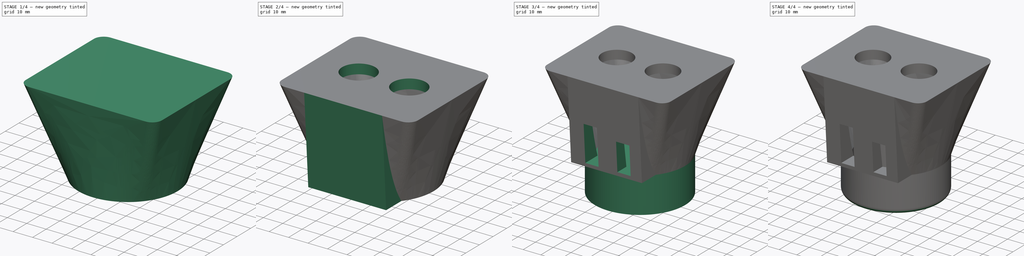
[diagram: build sequence overview — one tinted view per stage of 4, left to right]
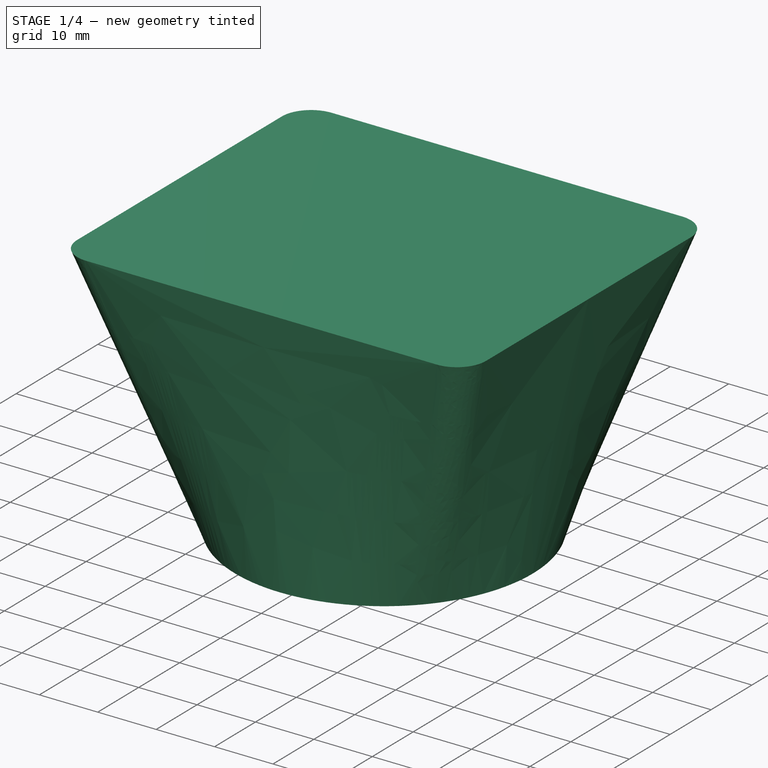
[diagram: stage 1 of 4 — iso view after this stage's code; geometry added in this stage tinted green]
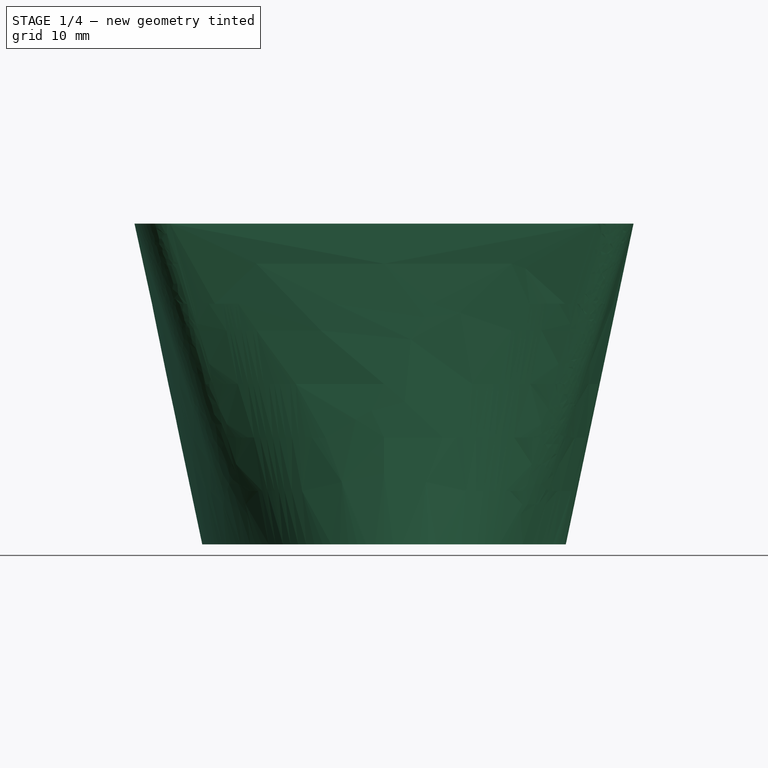
[diagram: stage 1 of 4 — front view after this stage's code; geometry added in this stage tinted green]
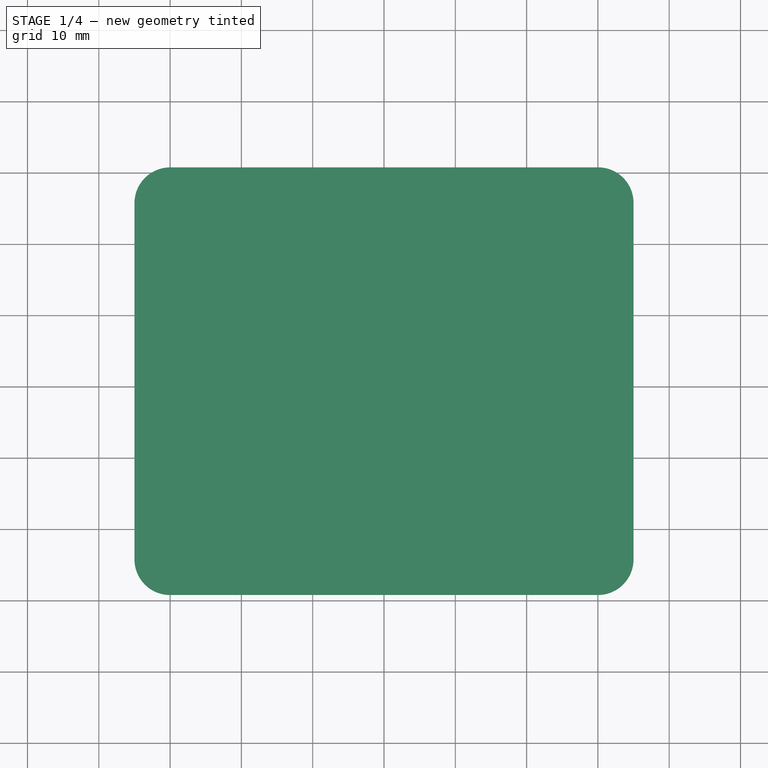
[diagram: stage 1 of 4 — top view after this stage's code; geometry added in this stage tinted green]
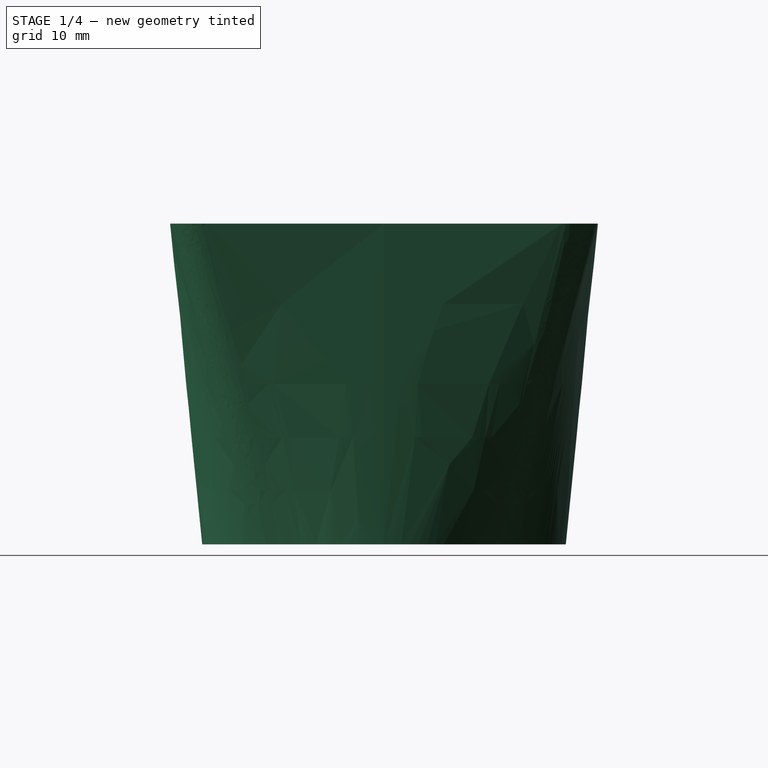
[diagram: stage 1 of 4 — right view after this stage's code; geometry added in this stage tinted green]
FCSTD DOCUMENT  (FreeCAD 0.16R6706 (Git))
Label: Capat senzor 05
License: All rights reserved
LicenseURL: http://en.wikipedia.org/wiki/All_rights_reserved
objects: Sketcher::SketchObject×8, Part::Cut×3, Part::Loft×3, Part::Cylinder×2, Part::MultiFuse×2, Part::Fillet×1, Part::Extrusion×1, PartDesign::Pocket×1
note: 22 computed .brp shape members not serialized (recipe doc carries the construction recipe); baked Part::Feature solids carry a one-line shape summary decoded from their .brp

FEATURE [Sketcher::SketchObject] Sketch
  Placement = pos=(0,0,20) rot=(0,0,1;0rad)
  sketch-geometry (1):
    g0: Circle CenterX=0 CenterY=0 CenterZ=0 NormalX=0 NormalY=0 NormalZ=1 Radius=20.5
  constraints (2):
    c: Coincident(g0,g-1)
    c: Radius(g0) = 20.5
FEATURE [Sketcher::SketchObject] Sketch002
  Placement = pos=(0,0,60) rot=(0,0,1;0rad)
  sketch-geometry (8):
    g0: LineSegment StartX=-25 StartY=25 StartZ=0 EndX=25 EndY=25 EndZ=0
    g1: LineSegment StartX=-30 StartY=20 StartZ=0 EndX=-30 EndY=-20 EndZ=0
    g2: LineSegment StartX=-25 StartY=-25 StartZ=0 EndX=25 EndY=-25 EndZ=0
    g3: LineSegment StartX=30 StartY=-20 StartZ=0 EndX=30 EndY=20 EndZ=0
    g4: ArcOfCircle CenterX=-24.9554 CenterY=19.9554 CenterZ=0 NormalX=0 NormalY=0 NormalZ=1 Radius=5.04478 StartAngle=1.57963 EndAngle=3.13275
    g5: ArcOfCircle CenterX=25.0182 CenterY=20.0182 CenterZ=0 NormalX=0 NormalY=0 NormalZ=1 Radius=4.9818 StartAngle=6.27953 EndAngle=7.85764
    g6: ArcOfCircle CenterX=25.0124 CenterY=-20.0124 CenterZ=0 NormalX=0 NormalY=0 NormalZ=1 Radius=4.98766 StartAngle=4.70991 EndAngle=6.28566
    g7: ArcOfCircle CenterX=-24.973 CenterY=-19.973 CenterZ=0 NormalX=0 NormalY=0 NormalZ=1 Radius=5.02711 StartAngle=3.14697 EndAngle=4.70701
  constraints (12):
    c: Horizontal(g0)
    c: Vertical(g1)
    c: Horizontal(g2)
    c: Vertical(g3)
    c: Coincident(g4,g0)
    c: Coincident(g4,g1)
    c: Coincident(g5,g3)
    c: Coincident(g5,g0)
    c: Coincident(g6,g2)
    c: Coincident(g6,g3)
    c: Coincident(g7,g2)
    c: Coincident(g7,g1)
FEATURE [Sketcher::SketchObject] Sketch003
  Placement = pos=(0,0,20) rot=(0,0,1;0rad)
  sketch-geometry (1):
    g0: Circle CenterX=0 CenterY=0 CenterZ=0 NormalX=0 NormalY=0 NormalZ=1 Radius=25.5
  constraints (2):
    c: Coincident(g0,g-1)
    c: Radius(g0) = 25.5
FEATURE [Part::Loft] Loft
  Closed = false
  Ruled = false
  Sections = -> [Sketch,Sketch002]
  Solid = true
FEATURE [Sketcher::SketchObject] Sketch001
  Placement = pos=(0,0,65) rot=(0,0,1;0rad)
  sketch-geometry (8):
    g0: LineSegment StartX=-35 StartY=-25 StartZ=0 EndX=-35 EndY=25 EndZ=0
    g1: LineSegment StartX=35 StartY=25 StartZ=0 EndX=35 EndY=-25 EndZ=0
    g2: LineSegment StartX=-30 StartY=-30 StartZ=0 EndX=30 EndY=-30 EndZ=0
    g3: LineSegment StartX=-30 StartY=30 StartZ=0 EndX=30 EndY=30 EndZ=0
    g4: ArcOfCircle CenterX=-29.9736 CenterY=24.9736 CenterZ=0 NormalX=0 NormalY=0 NormalZ=1 Radius=5.02644 StartAngle=1.57604 EndAngle=3.13635
    g5: ArcOfCircle CenterX=30.0287 CenterY=25.0287 CenterZ=0 NormalX=0 NormalY=0 NormalZ=1 Radius=4.97134 StartAngle=6.2774 EndAngle=7.85976
    g6: ArcOfCircle CenterX=30.0022 CenterY=-25.0022 CenterZ=0 NormalX=0 NormalY=0 NormalZ=1 Radius=4.99784 StartAngle=4.71196 EndAngle=6.28362
    g7: ArcOfCircle CenterX=-30.0144 CenterY=-25.0144 CenterZ=0 NormalX=0 NormalY=0 NormalZ=1 Radius=4.98558 StartAngle=3.1387 EndAngle=4.71528
  constraints (12):
    c: Vertical(g0)
    c: Vertical(g1)
    c: Horizontal(g2)
    c: Horizontal(g3)
    c: Coincident(g4,g0)
    c: Coincident(g4,g3)
    c: Coincident(g5,g1)
    c: Coincident(g5,g3)
    c: Coincident(g6,g1)
    c: Coincident(g6,g2)
    c: Coincident(g7,g0)
    c: Coincident(g7,g2)
FEATURE [Part::Loft] Loft001
  Closed = false
  Ruled = false
  Sections = -> [Sketch003,Sketch001]
  Solid = true
FEATURE [Part::Cut] Cut001
  Base = -> Loft001
  Tool = -> Loft
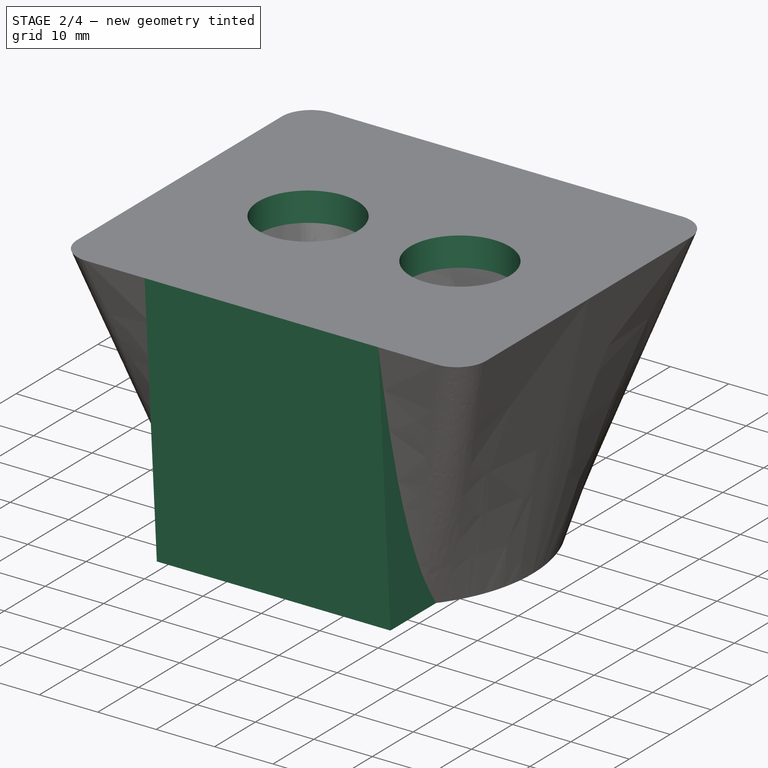
[diagram: stage 2 of 4 — iso view after this stage's code; geometry added in this stage tinted green]
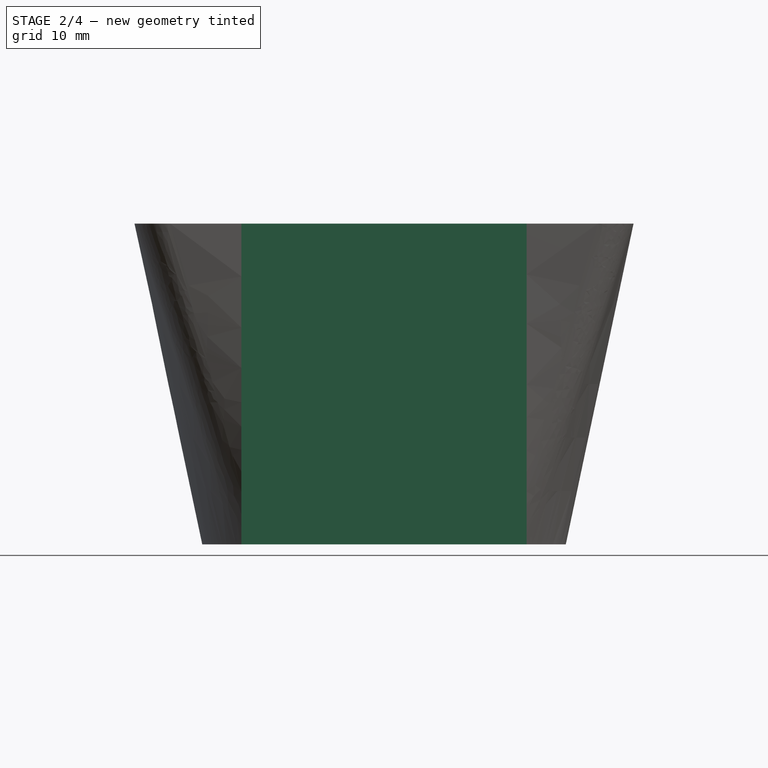
[diagram: stage 2 of 4 — front view after this stage's code; geometry added in this stage tinted green]
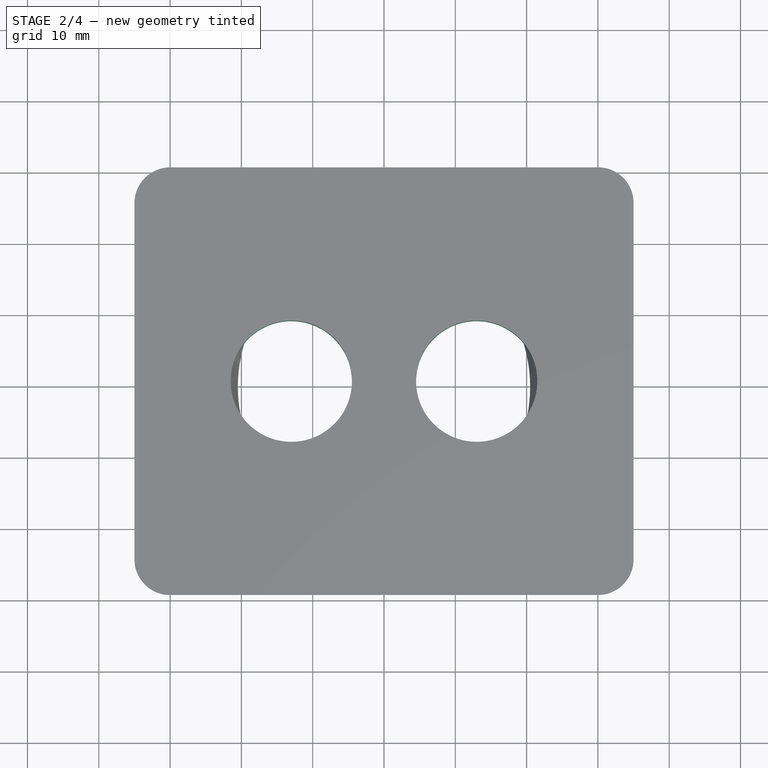
[diagram: stage 2 of 4 — top view after this stage's code; geometry added in this stage tinted green]
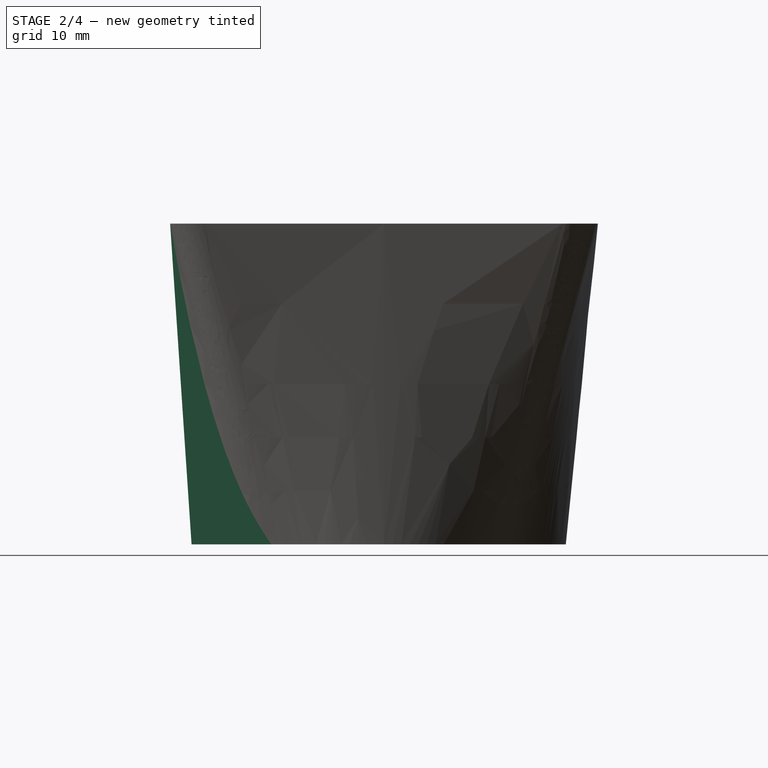
[diagram: stage 2 of 4 — right view after this stage's code; geometry added in this stage tinted green]
FEATURE [Sketcher::SketchObject] Sketch006
  Placement = pos=(0,0,20) rot=(0,0,1;0rad)
  sketch-geometry (5):
    g0: LineSegment StartX=20 StartY=-15 StartZ=0 EndX=20 EndY=-26.9922 EndZ=0
    g1: LineSegment StartX=20 StartY=-26.9922 StartZ=0 EndX=-20 EndY=-26.9922 EndZ=0
    g2: LineSegment StartX=-20 StartY=-26.9922 StartZ=0 EndX=-20 EndY=-15 EndZ=0
    g3: LineSegment StartX=-20 StartY=-15 StartZ=0 EndX=0 EndY=-25 EndZ=0
    g4: LineSegment StartX=20 StartY=-15 StartZ=0 EndX=0 EndY=-25 EndZ=0
  constraints (9):
    c: Coincident(g0,g1)
    c: Coincident(g1,g2)
    c: Horizontal(g1)
    c: Vertical(g0)
    c: Vertical(g2)
    c: Coincident(g3,g2)
    c: PointOnObject(g3,g-2)
    c: Coincident(g4,g0)
    c: Coincident(g4,g3)
FEATURE [Sketcher::SketchObject] Sketch007
  Placement = pos=(0,0,65) rot=(0,0,1;0rad)
  sketch-geometry (5):
    g0: LineSegment StartX=-20 StartY=-30 StartZ=0 EndX=20 EndY=-30 EndZ=0
    g1: LineSegment StartX=-20 StartY=-26.4992 StartZ=0 EndX=0 EndY=-28.7997 EndZ=0
    g2: LineSegment StartX=0 StartY=-28.7997 StartZ=0 EndX=20 EndY=-26.2853 EndZ=0
    g3: LineSegment StartX=20 StartY=-30 StartZ=0 EndX=20 EndY=-26.2853 EndZ=0
    g4: LineSegment StartX=-20 StartY=-30 StartZ=0 EndX=-20 EndY=-26.4992 EndZ=0
  constraints (8):
    c: Horizontal(g0)
    c: Coincident(g2,g1)
    c: Coincident(g3,g0)
    c: Coincident(g3,g2)
    c: Vertical(g3)
    c: Coincident(g4,g0)
    c: Coincident(g4,g1)
    c: Vertical(g4)
FEATURE [Part::Loft] Loft002  label="Suport butoane"
  Closed = false
  Ruled = false
  Sections = -> [Sketch006,Sketch007]
  Solid = true
FEATURE [PartDesign::Pocket] Pocket
  Length = 5
  Sketch = -> Sketch004
  Type = 0
FEATURE [Part::MultiFuse] Fusion
  Shapes = -> [Loft002,Pocket]
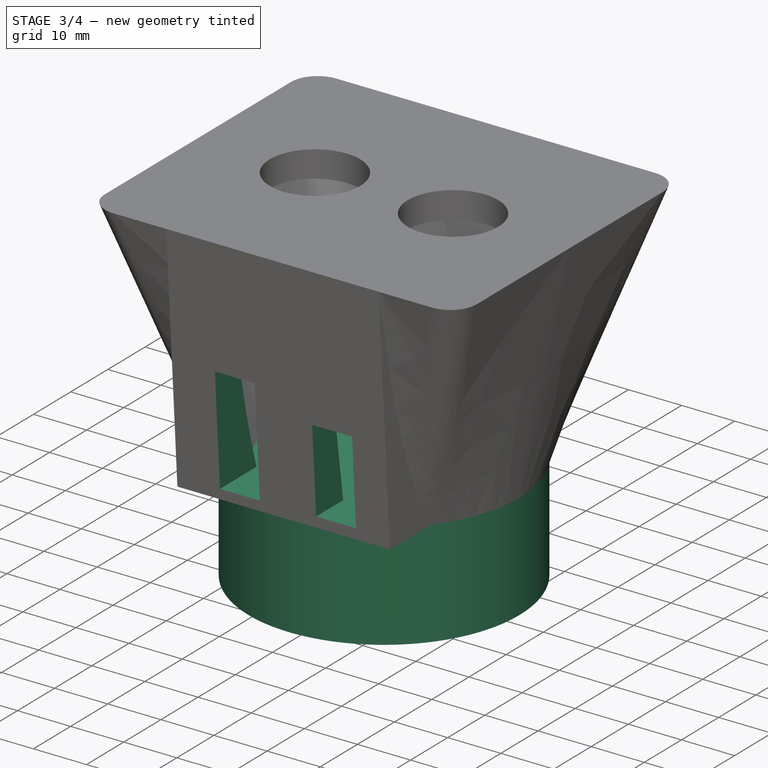
[diagram: stage 3 of 4 — iso view after this stage's code; geometry added in this stage tinted green]
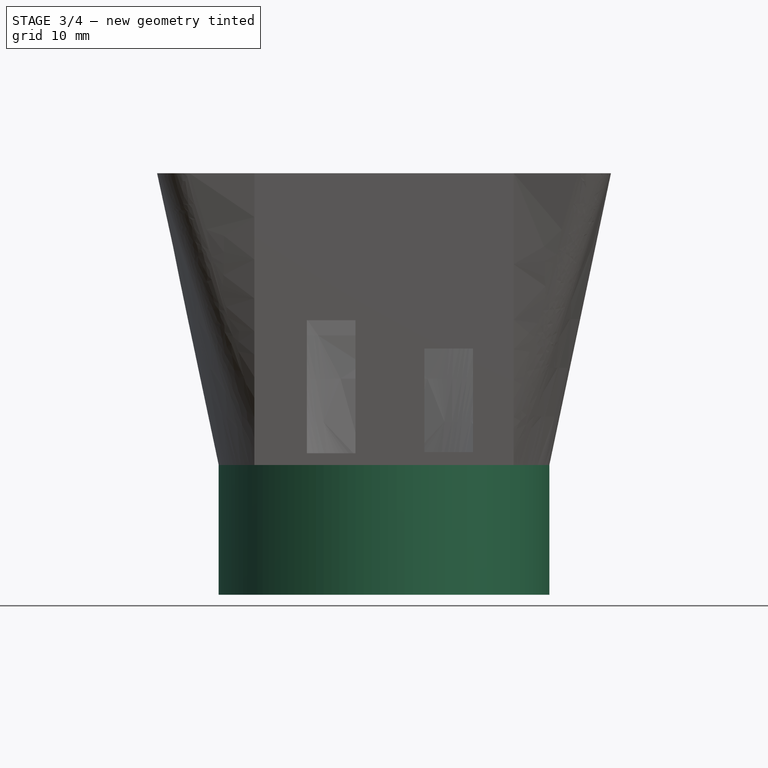
[diagram: stage 3 of 4 — front view after this stage's code; geometry added in this stage tinted green]
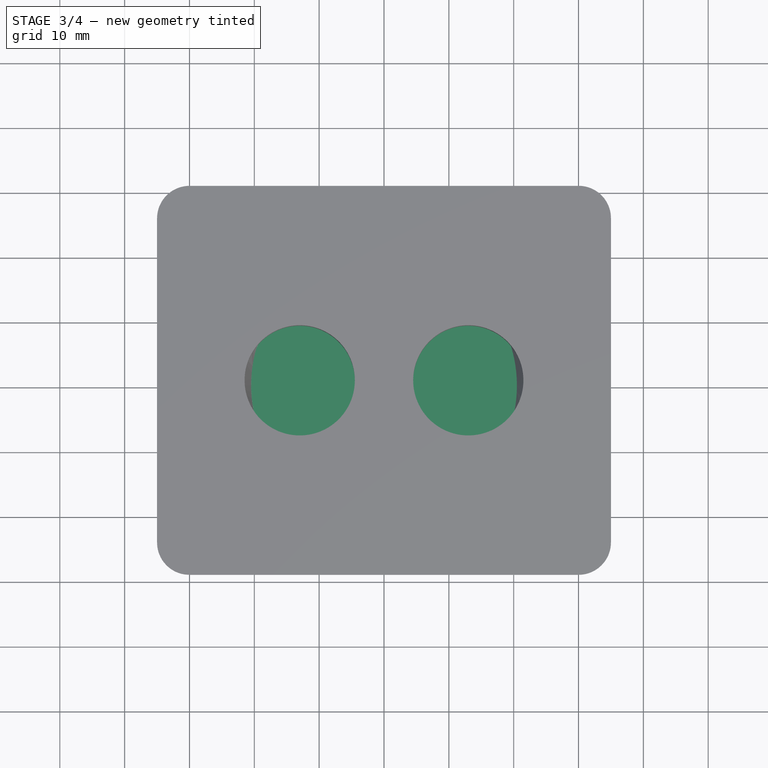
[diagram: stage 3 of 4 — top view after this stage's code; geometry added in this stage tinted green]
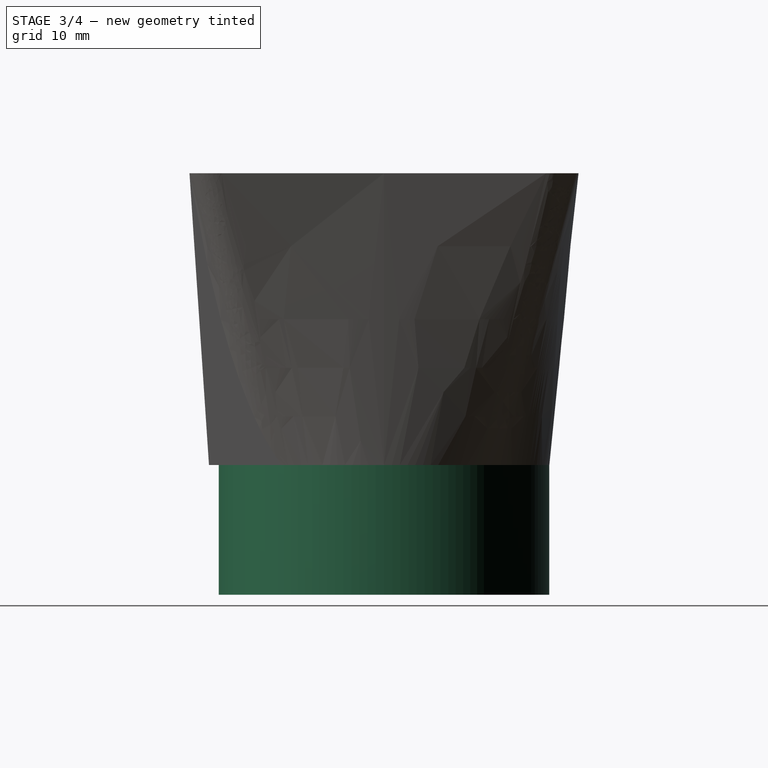
[diagram: stage 3 of 4 — right view after this stage's code; geometry added in this stage tinted green]
FEATURE [Part::Cylinder] Cylinder  label="Cilindru"
  Angle = 360
  Height = 20
  Radius = 25.5
FEATURE [Part::Cylinder] Cylinder001  label="Cilindru001"
  Angle = 360
  Height = 20
  Radius = 20.5
FEATURE [Sketcher::SketchObject] Sketch005  label="Butoane001"
  Placement = pos=(0,-15,0) rot=(1,0,0;1.5708rad)
  sketch-geometry (8):
    g0: LineSegment StartX=-11.9021 StartY=42.3252 StartZ=0 EndX=-4.4021 EndY=42.3252 EndZ=0
    g1: LineSegment StartX=-4.4021 StartY=42.3252 StartZ=0 EndX=-4.4021 EndY=21.8252 EndZ=0
    g2: LineSegment StartX=-4.4021 StartY=21.8252 StartZ=0 EndX=-11.9021 EndY=21.8252 EndZ=0
    g3: LineSegment StartX=-11.9021 StartY=21.8252 StartZ=0 EndX=-11.9021 EndY=42.3252 EndZ=0
    g4: LineSegment StartX=6.21979 StartY=37.9846 StartZ=0 EndX=13.7198 EndY=37.9846 EndZ=0
    g5: LineSegment StartX=13.7198 StartY=37.9846 StartZ=0 EndX=13.7198 EndY=21.9846 EndZ=0
    g6: LineSegment StartX=13.7198 StartY=21.9846 StartZ=0 EndX=6.21979 EndY=21.9846 EndZ=0
    g7: LineSegment StartX=6.21979 StartY=21.9846 StartZ=0 EndX=6.21979 EndY=37.9846 EndZ=0
  constraints (20):
    c: Coincident(g0,g1)
    c: Coincident(g1,g2)
    c: Coincident(g2,g3)
    c: Coincident(g3,g0)
    c: Horizontal(g0)
    c: Horizontal(g2)
    c: Vertical(g1)
    c: Vertical(g3)
    c: Distance(g2) = 7.5
    c: Distance(g1) = 20.5
    c: Coincident(g4,g5)
    c: Coincident(g5,g6)
    c: Coincident(g6,g7)
    c: Coincident(g7,g4)
    c: Horizontal(g4)
    c: Horizontal(g6)
    c: Vertical(g5)
    c: Vertical(g7)
    c: Distance(g6) = 7.5
    c: Distance(g5) = 16
FEATURE [Part::Extrusion] Extrude  label="Butoane"
  Base = -> Sketch005
  Dir = (0,-30,0)
  Solid = true
FEATURE [Part::Cut] Cut002
  Base = -> Fusion
  Tool = -> Extrude
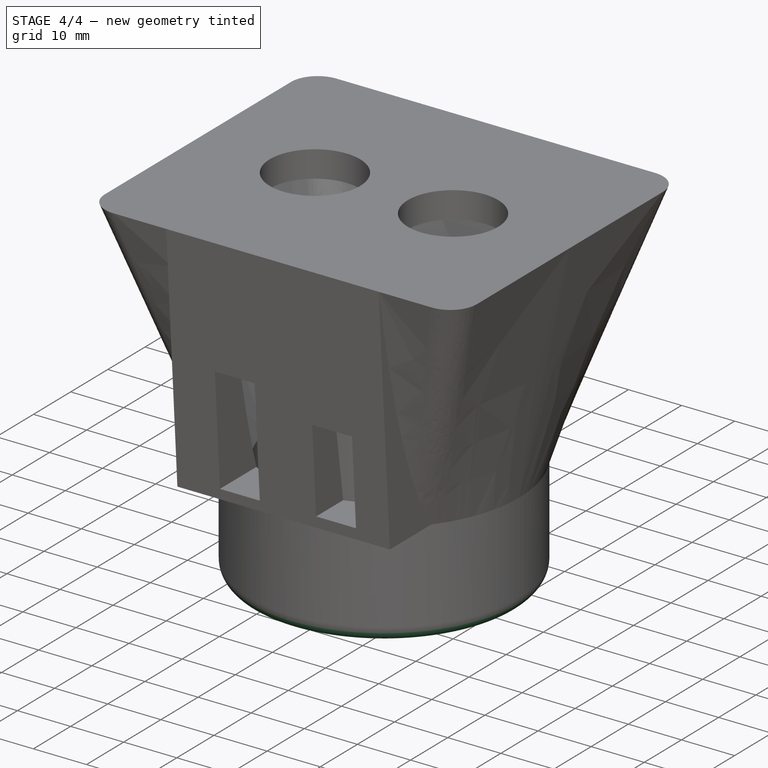
[diagram: stage 4 of 4 — iso view after this stage's code; geometry added in this stage tinted green]
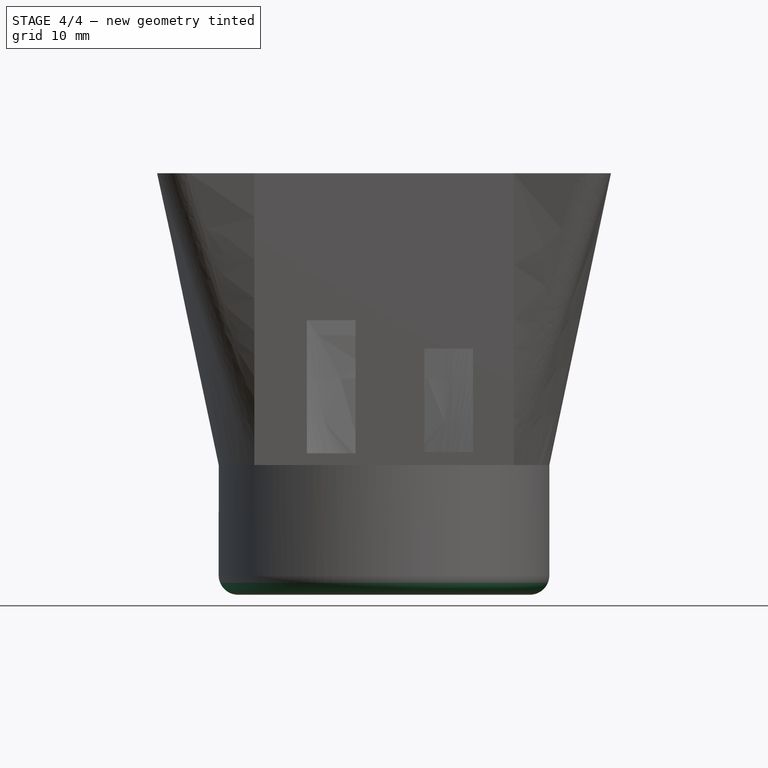
[diagram: stage 4 of 4 — front view after this stage's code; geometry added in this stage tinted green]
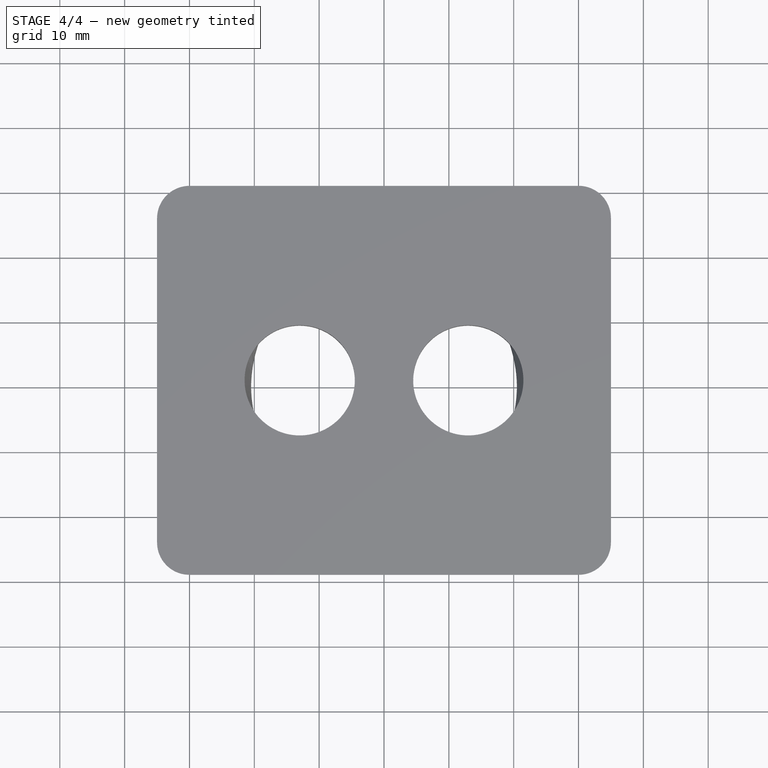
[diagram: stage 4 of 4 — top view after this stage's code; geometry added in this stage tinted green]
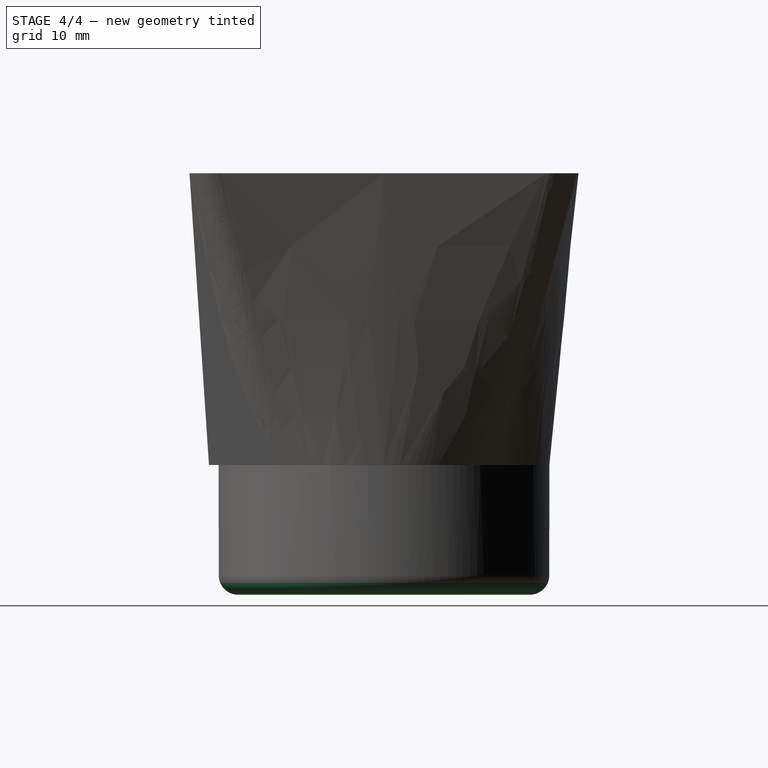
[diagram: stage 4 of 4 — right view after this stage's code; geometry added in this stage tinted green]
FEATURE [Part::Cut] Cut
  Base = -> Cylinder
  Tool = -> Cylinder001
FEATURE [Sketcher::SketchObject] Sketch004
  Placement = pos=(0,0,65) rot=(0,0,1;0rad)
  Support = -> Cut001 [Face4]
  sketch-geometry (2):
    g0: Circle CenterX=-13 CenterY=0 CenterZ=0 NormalX=0 NormalY=0 NormalZ=1 Radius=8.5
    g1: Circle CenterX=13 CenterY=0 CenterZ=0 NormalX=0 NormalY=0 NormalZ=1 Radius=8.5
  constraints (6):
    c: PointOnObject(g0,g-1)
    c: PointOnObject(g1,g-1)
    c: Radius(g0) = 8.5
    c: Radius(g1) = 8.5
    c: Distance(g0,g1) = 26
    c: Symmetric(g0,g1,g-1)
FEATURE [Part::Fillet] Fillet
  Base = -> Cut
  Edges = 1 edges r=3: [Edge3]
FEATURE [Part::MultiFuse] Fusion001
  Shapes = -> [Fillet,Cut002]
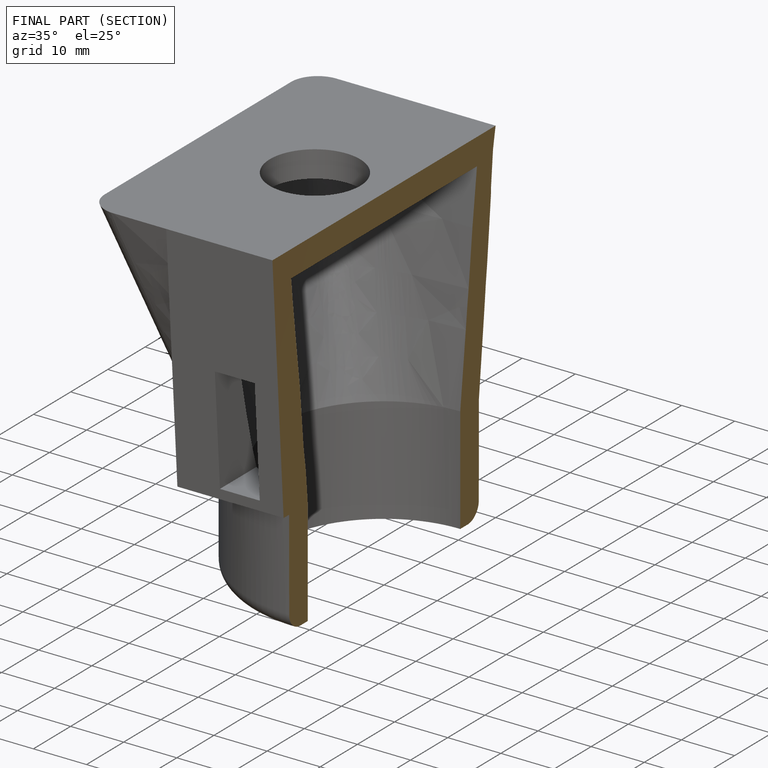
[diagram: finished part — half-section view (interior)]
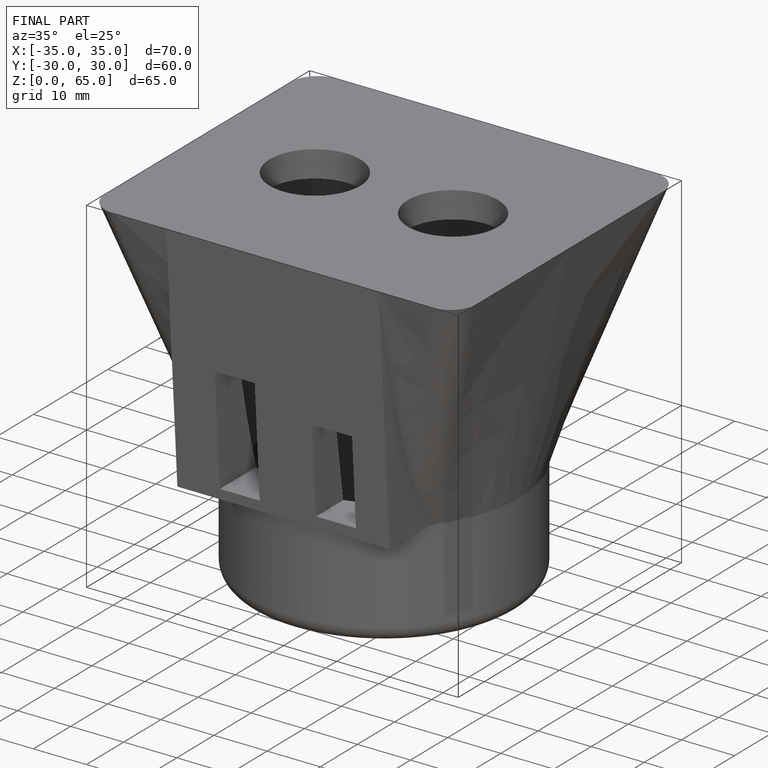
[diagram: finished part — iso view with bounding-box wireframe]
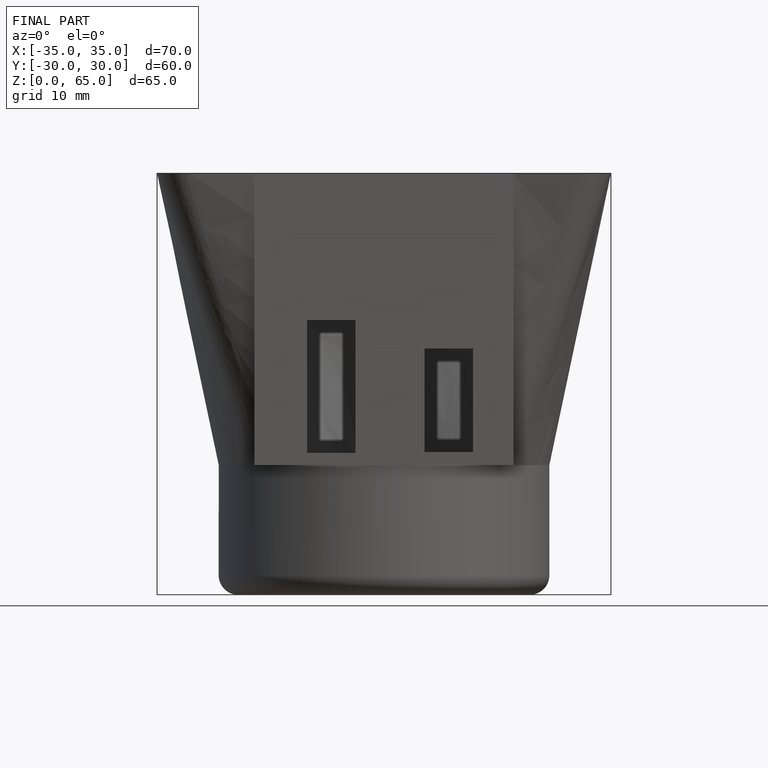
[diagram: finished part — front view with bounding-box wireframe]
